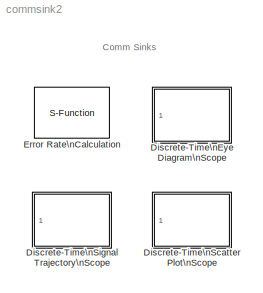
MODEL commsink2
KIND library
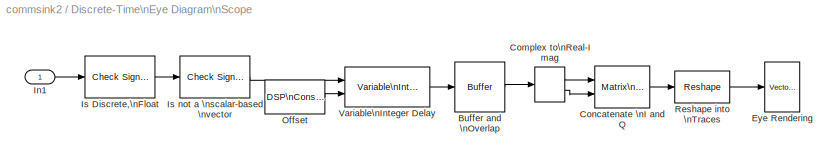
BLOCK [SubSystem] Discrete-Time\nEye Diagram\nScope
  EnableExecutionContextPropagation = on
  LoadFcn = commblkeyescat2(gcb,'Load');
  MaskCallbackString = |||||||||||||||||commblkeyescat2(gcb,'cbDispDiagram');|||||
  MaskDescription = The Discrete-Time Eye Diagram Scope displays multiple traces of a modulated signal to reveal the modulation characteristics such as pulse shaping, as well as channel distortions of the signal. \n\n\nThe signal is divided into traces with length, 'Samples per symbol'  * 'Symbols per trace' starting by skipping 'Offset' samples at the beginning.
  MaskDisplay = image(imread('eye.bmp','bmp'),'center')
  MaskEnableString = on,on,on,on,on,on,on,on,on,on,on,on,on,on,on,on,on,on,on,on,on,on,on
  MaskHelp = helpview(commbhelp)
  MaskIconFrame = on
  MaskIconOpaque = on
  MaskIconRotate = none
  MaskIconUnits = autoscale
  MaskInitialization = commblkeyescat2(gcb,'init','eye');
  MaskPromptString = Samples per symbol:|Offset (samples):|Symbols per trace:|Traces displayed:|New traces per display:|Markers:|Line style:|Line color:|Duplicate points at trace boundary|Color fading|High quality rendering|Show grid|Y axis minimum:|Y axis maximum:|In-phase Y-axis label:|Quadrature Y-axis label:|Open scope at start of simulation|Eye diagram to display:|Trace number|Scope position:|Title:|Block select|...<+13ch>
  MaskSelfModifiable = on
  MaskStyleString = edit,edit,edit,edit,edit,edit,edit,edit,checkbox,checkbox,checkbox,checkbox,edit,edit,edit,edit,checkbox,popup(In-phase Only|In-phase and Quadrature),checkbox,edit,edit,popup(eye|scatter|xy),edit
  MaskTabNameString = Plotting Properties,Plotting Properties,Plotting Properties,Plotting Properties,Plotting Properties,Rendering Properties,Rendering Properties,Rendering Properties,Rendering Properties,Rendering Properties,Rendering Properties,Rendering Properties,Axes Properties,Axes Properties,Axes Properties,Axes Properties,Figure Properties,Figure Properties,Figure Properties,Figure Properties,Figure Properties...<+36ch>
  MaskToolTipString = on,on,on,on,on,on,on,on,on,on,on,on,on,on,on,on,on,on,on,on,on,on,on
  MaskTunableValueString = off,on,off,off,off,on,on,on,on,on,on,on,on,on,on,on,on,on,on,on,on,off,off
  MaskType = Discrete-Time Eye Diagram Scope
  MaskValueString = 8|0|1|40|10||-|b|on|on|on|on|-1.5|1.5|In-phase Amplitude|Quadrature Amplitude|on|In-phase and Quadrature|off|get(0,'defaultfigureposition');|Eye Diagram|eye|8
  MaskVarAliasString = ,,,,,,,,,,,,,,,,,,,,,,
  MaskVariables = sampPerSymb=@1;offsetEye=@2;symbPerTrace=@3;numTraces=@4;numNewFrames=@5;LineMarkers=&6;LineStyles=&7;LineColors=&8;dupPoints=@9;fading=@10;render=@11;AxisGrid=&12;yMin=@13;yMax=@14;inphaseLabel=&15;quadratureLabel=&16;openScopeAtSimStart=@17;dispDiagram=@18;FrameNumber=&19;FigPos=@20;figTitle=&21;block_type_=@22;numLinesMax=@23;
  MaskVisibilityString = on,on,on,on,on,on,on,on,on,on,on,on,on,on,on,on,on,on,on,on,on,off,off
  MinAlgLoopOccurrences = off
  OpenFcn = dspblkfscope2('dynamic','OpenScope');
  Ports = [1]
  StopFcn = sdspfscope2([],[],[],'StopBlock',[],[]);
  Tag = EyeDiagram
  TreatAsAtomicUnit = off
BLOCK [Reference] Discrete-Time\nEye Diagram\nScope/Buffer and \nOverlap  REF=dspbuff3/Buffer
  N = numTraces * sampPerSymb * symbPerTrace
  Ports = [1, 1]
  SourceBlock = dspbuff3/Buffer
  SourceType = Buffer
  V = (numTraces - numNewFrames)* sampPerSymb
  ic = 0
BLOCK [ComplexToRealImag] Discrete-Time\nEye Diagram\nScope/Complex to\nReal-Imag
  Output = Real and imag
  Ports = [1, 2]
BLOCK [Reference] Discrete-Time\nEye Diagram\nScope/Concatenate \nI and Q  REF=simulink/Math\nOperations/Matrix\nConcatenation
  Ports = [2, 1]
  SourceBlock = simulink/Math\nOperations/Matrix\nConcatenation
  SourceType = Matrix Concatenation
  catMethod = Horizontal
  numInports = 2
BLOCK [Reference] Discrete-Time\nEye Diagram\nScope/Eye Rendering  REF=dspsnks4/Vector\nScope
  AxisGrid = on
  AxisLegend = off
  AxisProperties = off
  AxisZoom = off
  DisplayProperties = off
  Domain = Time
  FigPos = FigPos
  FrameNumber = on
  HorizSpan = 1
  InheritXIncr = on
  LineProperties = off
  Memory = off
  OpenScopeAtSimStart = on
  OpenScopeImmediately = off
  Ports = [1]
  ScopeProperties = on
  ShowPortLabels = off
  SourceBlock = dspsnks4/Vector\nScope
  SourceType = Vector Scope
  XIncr = 1
  XLabel = Time
  XRange = [0...Fs/2]
  XUnits = Hertz
  YLabel = Amplitude
  YMax = 1.5
  YMin = -1.5
  YUnits = dB
BLOCK [Inport] Discrete-Time\nEye Diagram\nScope/In1
  IconDisplay = Port number
  LatchInput = off
BLOCK [Reference] Discrete-Time\nEye Diagram\nScope/Is Discrete,\nFloat  REF=dspsigattribs/Check Signal\nAttributes
  Complexity = Ignore
  DatatypeCheckMethod = Is...
  DatatypeGeneral = Floating-point
  Dimensions = Vector (1-D or 2-D) or scalar
  DimsCheckMethod = Is...
  DtypeFixedSpecific = Any fixed-point
  DtypeFloatSpecific = Any floating-point
  DtypeIntSpecific = Any integer
  Frame = Ignore
  Ports = [1, 1]
  SampleMode = Discrete
  ShowPortLabels = on
  SigAttribCheckMethod = Does not match attributes exactly
  SourceBlock = dspsigattribs/Check Signal\nAttributes
  SourceType = Check Signal Attributes
BLOCK [Reference] Discrete-Time\nEye Diagram\nScope/Is not a \nscalar-based \nvector  REF=dspsigattribs/Check Signal\nAttributes
  Complexity = Ignore
  DatatypeCheckMethod = Ignore
  DatatypeGeneral = Floating-point
  Dimensions = Vector (1-D or 2-D)
  DimsCheckMethod = Is...
  DtypeFixedSpecific = Any fixed-point
  DtypeFloatSpecific = Any floating-point
  DtypeIntSpecific = Any integer
  Frame = Sample-based
  Ports = [1, 1]
  SampleMode = Ignore
  ShowPortLabels = on
  SigAttribCheckMethod = Matches attributes exactly
  SourceBlock = dspsigattribs/Check Signal\nAttributes
  SourceType = Check Signal Attributes
BLOCK [Reference] Discrete-Time\nEye Diagram\nScope/Offset  REF=dspsrcs4/DSP\nConstant
  FramebasedOutput = off
  InterpretAs1D = off
  Ports = [0, 1]
  SampleMode = Discrete
  ShowPortLabels = on
  SourceBlock = dspsrcs4/DSP\nConstant
  SourceType = DSP Constant
  Ts = -1
  Value = offsetEye + round(sampPerSymb/2)
  additionalParams = off
  allowOverrides = on
  continuousOutput = Sample-based
  dataType = Inherit from 'Constant value'
  discreteOutput = Sample-based
  fracBitsMode = Best precision
  framePeriod = -1
  isSigned = on
  numFracBits = 15
  sampTime = -1
  udDataType = sfix(16)
  wordLen = 16
BLOCK [Reference] Discrete-Time\nEye Diagram\nScope/Reshape into \nTraces  REF=simulink/Math\nOperations/Reshape
  OutputDimensionality = Customize
  OutputDimensions = [sampPerSymb*symbPerTrace, (numTraces*2)]
  Ports = [1, 1]
  SourceBlock = simulink/Math\nOperations/Reshape
  SourceType = Reshape
BLOCK [Reference] Discrete-Time\nEye Diagram\nScope/Variable\nInteger Delay  REF=dspsigops/Variable\nInteger Delay
  Ports = [2, 1]
  SourceBlock = dspsigops/Variable\nInteger Delay
  SourceType = Variable Integer Delay
  dmax = 100
  ic = 0
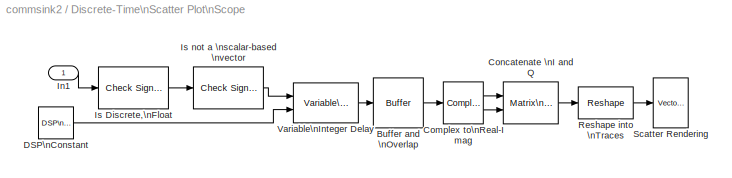
BLOCK [SubSystem] Discrete-Time\nScatter Plot\nScope
  EnableExecutionContextPropagation = on
  LoadFcn = commblkeyescat2(gcb,'Load');
  MaskCallbackString = |||||||||||||||||||||
  MaskDescription = The Discrete-Time Scatter Plot Scope is used to display a modulated signal constellation in its signal space by plotting the In-phase component versus the Quadrature component.\n\n\nUse with 'Samples per Symbol' set to 1 to view signals after detection or for signals without oversampling.  For oversampled signals, the input is decimated by 'Samples per symbol' skipping 'Offset' initial samples.
  MaskDisplay = image(imread('scatter.bmp','bmp'),'center')
  MaskEnableString = on,on,on,on,on,off,on,on,on,on,on,on,on,on,on,on,on,on,on,on,on,on
  MaskHelp = helpview(commbhelp)
  MaskIconFrame = on
  MaskIconOpaque = on
  MaskIconRotate = none
  MaskIconUnits = autoscale
  MaskInitialization = x = [2 8 5 2 8 5 5 5];\ny = [2 8 5 8 2 5 8 2];\ncommblkeyescat2(gcb,'init','scatter');\n
  MaskPromptString = Samples per symbol:|Offset (samples):|Points displayed:|New points per display:|Markers:|Line style:|Line color:|Color fading|High quality rendering|Show grid|X-axis minimum:|X-axis maximum:|Y-axis minimum:|Y axis maximum:|In-phase X-axis label:|Quadrature Y-axis label:|Open scope at start of simulation|Point number|Scope position:|Title:|Max Num Lines|Block Type
  MaskSelfModifiable = on
  MaskStyleString = edit,edit,edit,edit,edit,edit,edit,checkbox,checkbox,checkbox,edit,edit,edit,edit,edit,edit,checkbox,checkbox,edit,edit,edit,popup(eye|scatter|xy)
  MaskTabNameString = Plotting Properties,Plotting Properties,Plotting Properties,Plotting Properties,Rendering Properties,Rendering Properties,Rendering Properties,Rendering Properties,Rendering Properties,Rendering Properties,Axes Properties,Axes Properties,Axes Properties,Axes Properties,Axes Properties,Axes Properties,Figure Properties,Figure Properties,Figure Properties,Figure Properties,Figure Properties,Figure P...<+9ch>
  MaskToolTipString = on,on,on,on,on,on,on,on,on,on,on,on,on,on,on,on,on,on,on,on,on,on
  MaskTunableValueString = off,on,off,off,on,on,on,on,on,on,on,on,on,on,on,on,on,on,on,on,off,off
  MaskType = Discrete-Time Scatter Plot Scope
  MaskValueString = 1|0|40|10|.||b|on|on|on|-1.5|1.5|-1.5|1.5|In-phase Amplitude|Quadrature Amplitude|on|off|get(0,'defaultfigureposition');|Scatter Plot|8|scatter
  MaskVarAliasString = ,,,,,,,,,,,,,,,,,,,,,
  MaskVariables = sampPerSymb=@1;offsetEye=@2;numTraces=@3;numNewFrames=@4;LineMarkers=&5;LineStyles=&6;LineColors=&7;fading=@8;render=@9;AxisGrid=&10;xMin=@11;xMax=@12;yMin=@13;yMax=@14;inphaseLabel=&15;quadratureLabel=&16;openScopeAtSimStart=&17;FrameNumber=&18;FigPos=@19;figTitle=&20;numLinesMax=@21;block_type_=@22;
  MaskVisibilityString = on,on,on,on,on,off,on,on,on,on,on,on,on,on,on,on,on,on,on,on,off,off
  MinAlgLoopOccurrences = off
  OpenFcn = dspblkfscope2('dynamic','OpenScope');
  Ports = [1]
  StopFcn = sdspfscope2([],[],[],'StopBlock',[],[]);
  Tag = ScatterPlot
  TreatAsAtomicUnit = off
BLOCK [Reference] Discrete-Time\nScatter Plot\nScope/Buffer and \nOverlap  REF=dspbuff3/Buffer
  N = numTraces * sampPerSymb
  Ports = [1, 1]
  SourceBlock = dspbuff3/Buffer
  SourceType = Buffer
  V = (numTraces - numNewFrames)* sampPerSymb
  ic = 0
BLOCK [ComplexToRealImag] Discrete-Time\nScatter Plot\nScope/Complex to\nReal-Imag
  Output = Real and imag
  Ports = [1, 2]
BLOCK [Reference] Discrete-Time\nScatter Plot\nScope/Concatenate \nI and Q  REF=simulink/Math\nOperations/Matrix\nConcatenation
  Ports = [2, 1]
  SourceBlock = simulink/Math\nOperations/Matrix\nConcatenation
  SourceType = Matrix Concatenation
  catMethod = Horizontal
  numInports = 2
BLOCK [Reference] Discrete-Time\nScatter Plot\nScope/DSP\nConstant  REF=dspsrcs4/DSP\nConstant
  FramebasedOutput = off
  InterpretAs1D = off
  Ports = [0, 1]
  SampleMode = Discrete
  ShowPortLabels = on
  SourceBlock = dspsrcs4/DSP\nConstant
  SourceType = DSP Constant
  Ts = -1
  Value = offsetEye+sampPerSymb-1
  additionalParams = off
  allowOverrides = on
  continuousOutput = Sample-based
  dataType = Inherit from 'Constant value'
  discreteOutput = Sample-based
  fracBitsMode = Best precision
  framePeriod = -1
  isSigned = on
  numFracBits = 15
  sampTime = -1
  udDataType = sfix(16)
  wordLen = 16
BLOCK [Inport] Discrete-Time\nScatter Plot\nScope/In1
  IconDisplay = Port number
  LatchInput = off
BLOCK [Reference] Discrete-Time\nScatter Plot\nScope/Is Discrete,\nFloat  REF=dspsigattribs/Check Signal\nAttributes
  Complexity = Complex
  DatatypeCheckMethod = Is...
  DatatypeGeneral = Floating-point
  Dimensions = Vector (1-D or 2-D) or scalar
  DimsCheckMethod = Is...
  DtypeFixedSpecific = Any fixed-point
  DtypeFloatSpecific = Any floating-point
  DtypeIntSpecific = Any integer
  Frame = Ignore
  Ports = [1, 1]
  SampleMode = Discrete
  ShowPortLabels = on
  SigAttribCheckMethod = Does not match attributes exactly
  SourceBlock = dspsigattribs/Check Signal\nAttributes
  SourceType = Check Signal Attributes
BLOCK [Reference] Discrete-Time\nScatter Plot\nScope/Is not a \nscalar-based \nvector  REF=dspsigattribs/Check Signal\nAttributes
  Complexity = Ignore
  DatatypeCheckMethod = Ignore
  DatatypeGeneral = Floating-point
  Dimensions = Vector (1-D or 2-D)
  DimsCheckMethod = Is...
  DtypeFixedSpecific = Any fixed-point
  DtypeFloatSpecific = Any floating-point
  DtypeIntSpecific = Any integer
  Frame = Sample-based
  Ports = [1, 1]
  SampleMode = Ignore
  ShowPortLabels = on
  SigAttribCheckMethod = Matches attributes exactly
  SourceBlock = dspsigattribs/Check Signal\nAttributes
  SourceType = Check Signal Attributes
BLOCK [Reference] Discrete-Time\nScatter Plot\nScope/Reshape into \nTraces  REF=simulink/Math\nOperations/Reshape
  OutputDimensionality = Customize
  OutputDimensions = [sampPerSymb, (numTraces*2)]
  Ports = [1, 1]
  SourceBlock = simulink/Math\nOperations/Reshape
  SourceType = Reshape
BLOCK [Reference] Discrete-Time\nScatter Plot\nScope/Scatter Rendering  REF=dspsnks4/Vector\nScope
  AxisGrid = on
  AxisLegend = off
  AxisProperties = off
  AxisZoom = off
  DisplayProperties = off
  Domain = User-defined
  FigPos = FigPos
  FrameNumber = on
  HorizSpan = 1
  InheritXIncr = on
  LineDisables = on
  LineProperties = off
  Memory = off
  OpenScopeAtSimStart = on
  OpenScopeImmediately = off
  Ports = [1]
  ScopeProperties = on
  ShowPortLabels = off
  SourceBlock = dspsnks4/Vector\nScope
  SourceType = Vector Scope
  XIncr = 1
  XLabel = Time
  XRange = [0...Fs/2]
  XUnits = Hertz
  YLabel = Quadrature Amplitude
  YMax = 1.5
  YMin = -1.5
  YUnits = dB
BLOCK [Reference] Discrete-Time\nScatter Plot\nScope/Variable\nInteger Delay  REF=dspsigops/Variable\nInteger Delay
  Ports = [2, 1]
  SourceBlock = dspsigops/Variable\nInteger Delay
  SourceType = Variable Integer Delay
  dmax = 100
  ic = 0
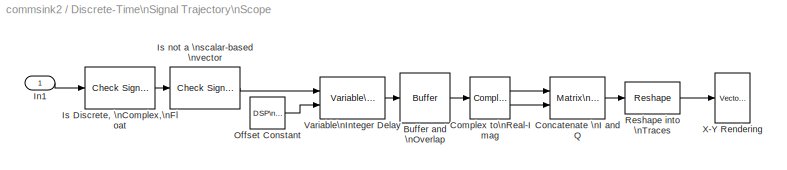
BLOCK [SubSystem] Discrete-Time\nSignal Trajectory\nScope
  EnableExecutionContextPropagation = on
  LoadFcn = commblkeyescat2(gcb,'Load');
  MaskCallbackString = |||||||||||||||||||||
  MaskDescription = The Discrete-Time Signal Trajectory Scope is used to display a modulated signal constellation in its signal space by plotting the In-phase component versus the Quadrature component.
  MaskDisplay = image(imread('sig_traj.bmp','bmp'),'center')
  MaskEnableString = on,off,on,on,off,on,on,on,on,on,on,on,on,on,on,on,on,on,on,on,on,on
  MaskHelp = helpview(commbhelp)
  MaskIconFrame = on
  MaskIconOpaque = on
  MaskIconRotate = none
  MaskIconUnits = autoscale
  MaskInitialization = x = [2 8 5 2 8 5 5 5];\ny = [2 8 5 8 2 5 8 2];\ncommblkeyescat2(gcb,'init','xy');\n
  MaskPromptString = Samples per symbol:|Offset (samples):|Symbols displayed:|New symbols per display:|Markers:|Line style:|Line color:|Color fading|High quality rendering|Show grid|X-axis minimum:|X-axis maximum:|Y-axis minimum:|Y axis maximum:|In-phase X-axis label:|Quadrature Y-axis label:|Open scope at start of simulation|Symbol number|Scope position:|Title:|Max Num Lines|Block Type
  MaskSelfModifiable = on
  MaskStyleString = edit,edit,edit,edit,edit,edit,edit,checkbox,checkbox,checkbox,edit,edit,edit,edit,edit,edit,checkbox,checkbox,edit,edit,edit,popup(eye|scatter|xy)
  MaskTabNameString = Plotting Properties,Plotting Properties,Plotting Properties,Plotting Properties,Rendering Properties,Rendering Properties,Rendering Properties,Rendering Properties,Rendering Properties,Rendering Properties,Axes Properties,Axes Properties,Axes Properties,Axes Properties,Axes Properties,Axes Properties,Figure Properties,Figure Properties,Figure Properties,Figure Properties,Figure Properties,Figure P...<+9ch>
  MaskToolTipString = on,on,on,on,on,on,on,on,on,on,on,on,on,on,on,on,on,on,on,on,on,on
  MaskTunableValueString = off,on,off,off,on,on,on,on,on,on,on,on,on,on,on,on,on,on,on,on,off,off
  MaskType = Discrete-Time Signal Trajectory Scope
  MaskValueString = 8|0|40|10||-|b|on|on|on|-1.5|1.5|-1.5|1.5|In-phase Amplitude|Quadrature Amplitude|on|off|get(0,'defaultfigureposition');|Signal Trajectory|8|xy
  MaskVarAliasString = ,,,,,,,,,,,,,,,,,,,,,
  MaskVariables = sampPerSymb=@1;offsetEye=@2;numTraces=@3;numNewFrames=@4;LineMarkers=&5;LineStyles=&6;LineColors=&7;fading=@8;render=@9;AxisGrid=&10;xMin=@11;xMax=@12;yMin=@13;yMax=@14;inphaseLabel=&15;quadratureLabel=&16;openScopeAtSimStart=&17;FrameNumber=&18;FigPos=@19;figTitle=&20;numLinesMax=@21;block_type_=@22;
  MaskVisibilityString = on,off,on,on,off,on,on,on,on,on,on,on,on,on,on,on,on,on,on,on,off,off
  MinAlgLoopOccurrences = off
  OpenFcn = dspblkfscope2('dynamic','OpenScope');
  Ports = [1]
  StopFcn = sdspfscope2([],[],[],'StopBlock',[],[]);
  Tag = SignalTrajectory
  TreatAsAtomicUnit = off
BLOCK [Reference] Discrete-Time\nSignal Trajectory\nScope/Buffer and \nOverlap  REF=dspbuff3/Buffer
  N = numTraces * sampPerSymb
  Ports = [1, 1]
  SourceBlock = dspbuff3/Buffer
  SourceType = Buffer
  V = (numTraces - numNewFrames)* sampPerSymb
  ic = 0
BLOCK [ComplexToRealImag] Discrete-Time\nSignal Trajectory\nScope/Complex to\nReal-Imag
  Output = Real and imag
  Ports = [1, 2]
BLOCK [Reference] Discrete-Time\nSignal Trajectory\nScope/Concatenate \nI and Q  REF=simulink/Math\nOperations/Matrix\nConcatenation
  Ports = [2, 1]
  SourceBlock = simulink/Math\nOperations/Matrix\nConcatenation
  SourceType = Matrix Concatenation
  catMethod = Horizontal
  numInports = 2
BLOCK [Inport] Discrete-Time\nSignal Trajectory\nScope/In1
  IconDisplay = Port number
  LatchInput = off
BLOCK [Reference] Discrete-Time\nSignal Trajectory\nScope/Is Discrete, \nComplex,\nFloat  REF=dspsigattribs/Check Signal\nAttributes
  Complexity = Complex
  DatatypeCheckMethod = Is...
  DatatypeGeneral = Floating-point
  Dimensions = Vector (1-D or 2-D) or scalar
  DimsCheckMethod = Is...
  DtypeFixedSpecific = Any fixed-point
  DtypeFloatSpecific = Any floating-point
  DtypeIntSpecific = Any integer
  Frame = Ignore
  Ports = [1, 1]
  SampleMode = Discrete
  ShowPortLabels = on
  SigAttribCheckMethod = Does not match attributes exactly
  SourceBlock = dspsigattribs/Check Signal\nAttributes
  SourceType = Check Signal Attributes
BLOCK [Reference] Discrete-Time\nSignal Trajectory\nScope/Is not a \nscalar-based \nvector  REF=dspsigattribs/Check Signal\nAttributes
  Complexity = Ignore
  DatatypeCheckMethod = Ignore
  DatatypeGeneral = Floating-point
  Dimensions = Vector (1-D or 2-D)
  DimsCheckMethod = Is...
  DtypeFixedSpecific = Any fixed-point
  DtypeFloatSpecific = Any floating-point
  DtypeIntSpecific = Any integer
  Frame = Sample-based
  Ports = [1, 1]
  SampleMode = Ignore
  ShowPortLabels = on
  SigAttribCheckMethod = Matches attributes exactly
  SourceBlock = dspsigattribs/Check Signal\nAttributes
  SourceType = Check Signal Attributes
BLOCK [Reference] Discrete-Time\nSignal Trajectory\nScope/Offset Constant  REF=dspsrcs4/DSP\nConstant
  FramebasedOutput = off
  InterpretAs1D = off
  Ports = [0, 1]
  SampleMode = Discrete
  ShowPortLabels = on
  SourceBlock = dspsrcs4/DSP\nConstant
  SourceType = DSP Constant
  Ts = -1
  Value = offsetEye + round(sampPerSymb/2)
  additionalParams = off
  allowOverrides = on
  continuousOutput = Sample-based
  dataType = Inherit from 'Constant value'
  discreteOutput = Sample-based
  fracBitsMode = Best precision
  framePeriod = -1
  isSigned = on
  numFracBits = 15
  sampTime = -1
  udDataType = sfix(16)
  wordLen = 16
BLOCK [Reference] Discrete-Time\nSignal Trajectory\nScope/Reshape into \nTraces  REF=simulink/Math\nOperations/Reshape
  OutputDimensionality = Customize
  OutputDimensions = [sampPerSymb, (numTraces*2)]
  Ports = [1, 1]
  SourceBlock = simulink/Math\nOperations/Reshape
  SourceType = Reshape
BLOCK [Reference] Discrete-Time\nSignal Trajectory\nScope/Variable\nInteger Delay  REF=dspsigops/Variable\nInteger Delay
  Ports = [2, 1]
  SourceBlock = dspsigops/Variable\nInteger Delay
  SourceType = Variable Integer Delay
  dmax = 100
  ic = 0
BLOCK [Reference] Discrete-Time\nSignal Trajectory\nScope/X-Y Rendering  REF=dspsnks4/Vector\nScope
  AxisGrid = on
  AxisLegend = off
  AxisProperties = off
  AxisZoom = off
  DisplayProperties = off
  Domain = User-defined
  FigPos = FigPos
  FrameNumber = on
  HorizSpan = 1
  InheritXIncr = on
  LineDisables = on
  LineProperties = off
  Memory = off
  OpenScopeAtSimStart = on
  OpenScopeImmediately = off
  Ports = [1]
  ScopeProperties = on
  ShowPortLabels = off
  SourceBlock = dspsnks4/Vector\nScope
  SourceType = Vector Scope
  XIncr = 1
  XLabel = In-phase Amplitude
  XRange = [0...Fs/2]
  XUnits = Hertz
  YLabel = Quadrature Amplitude
  YMax = 1.5
  YMin = -1.5
  YUnits = dB
BLOCK [S-Function] Error Rate\nCalculation
  FunctionName = scomerrrate2
  MaskCallbackString = ||commblkerrrate(gcb,'CpMode');||commblkerrrate(gcb,'OutMode');|||commblkerrrate(gcb,'UpdateEnables');||
  MaskDescription = Compute the error rate of the received data by comparing it to a delayed version of the transmitted data. The block output is a three-element vector consisting of the error rate, followed by the number of errors detected and the total number of symbols compared. This vector can be sent to either the workspace or an output port.\n\nThe delays are specified in number of samples, regardless of whethe...<+284ch>
  MaskDisplay = disp('  Error Rate\\n  Calculation');\nport_label('input',s.i1,s.i1s);\nport_label('input',s.i2,s.i2s);\nport_label('input',s.i3,s.i3s);\nport_label('input',s.i4,s.i4s);
  MaskEnableString = on,on,on,off,on,on,on,on,off,off
  MaskHelp = helpview(commbhelp)
  MaskIconFrame = on
  MaskIconOpaque = on
  MaskIconRotate = none
  MaskIconUnits = autoscale
  MaskInitialization = [s] = commblkerrrate(gcb,'init');\nif(PMode==1)\n    if(isempty(WsName))\n        error('Output variable name cannot be empty.')\n    end\n    if(~isletter(WsName(1)))\n        error('Output variable name must be a string.')\n    end\nend\n
  MaskPromptString = Receive delay:|Computation delay:|Computation mode:|Selected samples from frame:|Output data:|Variable name:|Reset port|Stop simulation|Target number of errors:|Maximum number of symbols:
  MaskSelfModifiable = on
  MaskStyleString = edit,edit,popup(Entire frame|Select samples from mask|Select samples from port),edit,popup(Workspace|Port),edit,checkbox,checkbox,edit,edit
  MaskTabNameString = ,,,,,,,,,
  MaskToolTipString = on,on,on,on,on,on,on,on,on,on
  MaskTunableValueString = off,off,off,off,off,off,off,on,on,on
  MaskType = Error Rate Calculation
  MaskValueString = 0|0|Entire frame|[]|Workspace|ErrorVec|off|off|100|1e6
  MaskVarAliasString = ,,,,,,,,,
  MaskVariables = N=@1;st_delay=@2;cp_mode=@3;subframe=@4;PMode=@5;WsName=&6;RsMode2=@7;stop=@8;numErr=@9;maxBits=@10;
  MaskVisibilityString = on,on,on,off,on,on,on,on,on,on
  Parameters = N, st_delay, cp_mode, subframe, PMode, WsName, RsMode2,stop,numErr,maxBits
  Ports = [2]
ANNOTATION (root): Comm Sinks
LINE Discrete-Time\nEye Diagram\nScope/Buffer and \nOverlap:1 -> Discrete-Time\nEye Diagram\nScope/Complex to\nReal-Imag:1
LINE Discrete-Time\nEye Diagram\nScope/Complex to\nReal-Imag:1 -> Discrete-Time\nEye Diagram\nScope/Concatenate \nI and Q:1
LINE Discrete-Time\nEye Diagram\nScope/Complex to\nReal-Imag:2 -> Discrete-Time\nEye Diagram\nScope/Concatenate \nI and Q:2
LINE Discrete-Time\nEye Diagram\nScope/Concatenate \nI and Q:1 -> Discrete-Time\nEye Diagram\nScope/Reshape into \nTraces:1
LINE Discrete-Time\nEye Diagram\nScope/In1:1 -> Discrete-Time\nEye Diagram\nScope/Is Discrete,\nFloat:1
LINE Discrete-Time\nEye Diagram\nScope/Is Discrete,\nFloat:1 -> Discrete-Time\nEye Diagram\nScope/Is not a \nscalar-based \nvector:1
LINE Discrete-Time\nEye Diagram\nScope/Is not a \nscalar-based \nvector:1 -> Discrete-Time\nEye Diagram\nScope/Variable\nInteger Delay:1
LINE Discrete-Time\nEye Diagram\nScope/Offset:1 -> Discrete-Time\nEye Diagram\nScope/Variable\nInteger Delay:2
LINE Discrete-Time\nEye Diagram\nScope/Reshape into \nTraces:1 -> Discrete-Time\nEye Diagram\nScope/Eye Rendering:1
LINE Discrete-Time\nEye Diagram\nScope/Variable\nInteger Delay:1 -> Discrete-Time\nEye Diagram\nScope/Buffer and \nOverlap:1
LINE Discrete-Time\nScatter Plot\nScope/Buffer and \nOverlap:1 -> Discrete-Time\nScatter Plot\nScope/Complex to\nReal-Imag:1
LINE Discrete-Time\nScatter Plot\nScope/Complex to\nReal-Imag:1 -> Discrete-Time\nScatter Plot\nScope/Concatenate \nI and Q:1
LINE Discrete-Time\nScatter Plot\nScope/Complex to\nReal-Imag:2 -> Discrete-Time\nScatter Plot\nScope/Concatenate \nI and Q:2
LINE Discrete-Time\nScatter Plot\nScope/Concatenate \nI and Q:1 -> Discrete-Time\nScatter Plot\nScope/Reshape into \nTraces:1
LINE Discrete-Time\nScatter Plot\nScope/DSP\nConstant:1 -> Discrete-Time\nScatter Plot\nScope/Variable\nInteger Delay:2
LINE Discrete-Time\nScatter Plot\nScope/In1:1 -> Discrete-Time\nScatter Plot\nScope/Is Discrete,\nFloat:1
LINE Discrete-Time\nScatter Plot\nScope/Is Discrete,\nFloat:1 -> Discrete-Time\nScatter Plot\nScope/Is not a \nscalar-based \nvector:1
LINE Discrete-Time\nScatter Plot\nScope/Is not a \nscalar-based \nvector:1 -> Discrete-Time\nScatter Plot\nScope/Variable\nInteger Delay:1
LINE Discrete-Time\nScatter Plot\nScope/Reshape into \nTraces:1 -> Discrete-Time\nScatter Plot\nScope/Scatter Rendering:1
LINE Discrete-Time\nScatter Plot\nScope/Variable\nInteger Delay:1 -> Discrete-Time\nScatter Plot\nScope/Buffer and \nOverlap:1
LINE Discrete-Time\nSignal Trajectory\nScope/Buffer and \nOverlap:1 -> Discrete-Time\nSignal Trajectory\nScope/Complex to\nReal-Imag:1
LINE Discrete-Time\nSignal Trajectory\nScope/Complex to\nReal-Imag:1 -> Discrete-Time\nSignal Trajectory\nScope/Concatenate \nI and Q:1
LINE Discrete-Time\nSignal Trajectory\nScope/Complex to\nReal-Imag:2 -> Discrete-Time\nSignal Trajectory\nScope/Concatenate \nI and Q:2
LINE Discrete-Time\nSignal Trajectory\nScope/Concatenate \nI and Q:1 -> Discrete-Time\nSignal Trajectory\nScope/Reshape into \nTraces:1
LINE Discrete-Time\nSignal Trajectory\nScope/In1:1 -> Discrete-Time\nSignal Trajectory\nScope/Is Discrete, \nComplex,\nFloat:1
LINE Discrete-Time\nSignal Trajectory\nScope/Is Discrete, \nComplex,\nFloat:1 -> Discrete-Time\nSignal Trajectory\nScope/Is not a \nscalar-based \nvector:1
LINE Discrete-Time\nSignal Trajectory\nScope/Is not a \nscalar-based \nvector:1 -> Discrete-Time\nSignal Trajectory\nScope/Variable\nInteger Delay:1
LINE Discrete-Time\nSignal Trajectory\nScope/Offset Constant:1 -> Discrete-Time\nSignal Trajectory\nScope/Variable\nInteger Delay:2
LINE Discrete-Time\nSignal Trajectory\nScope/Reshape into \nTraces:1 -> Discrete-Time\nSignal Trajectory\nScope/X-Y Rendering:1
LINE Discrete-Time\nSignal Trajectory\nScope/Variable\nInteger Delay:1 -> Discrete-Time\nSignal Trajectory\nScope/Buffer and \nOverlap:1
